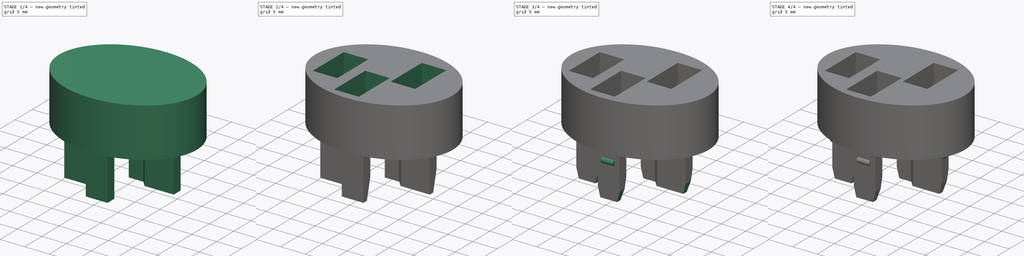
[diagram: build sequence overview — one tinted view per stage of 4, left to right]
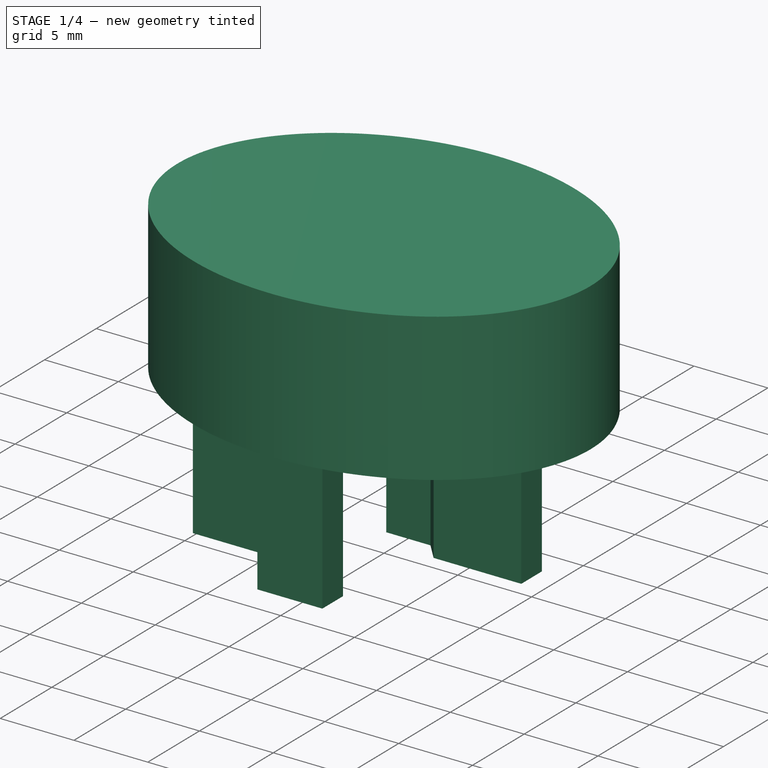
[diagram: stage 1 of 4 — iso view after this stage's code; geometry added in this stage tinted green]
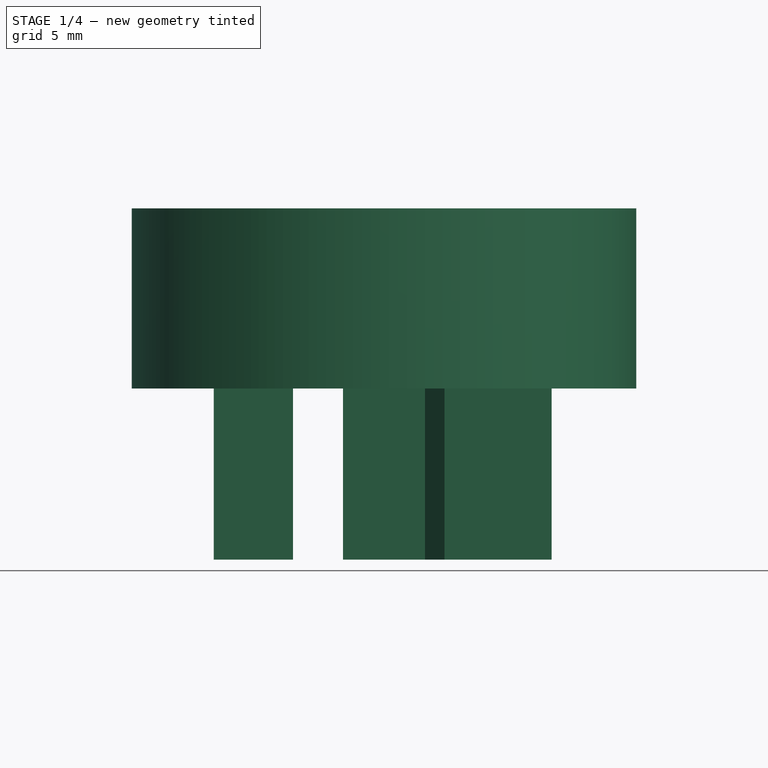
[diagram: stage 1 of 4 — front view after this stage's code; geometry added in this stage tinted green]
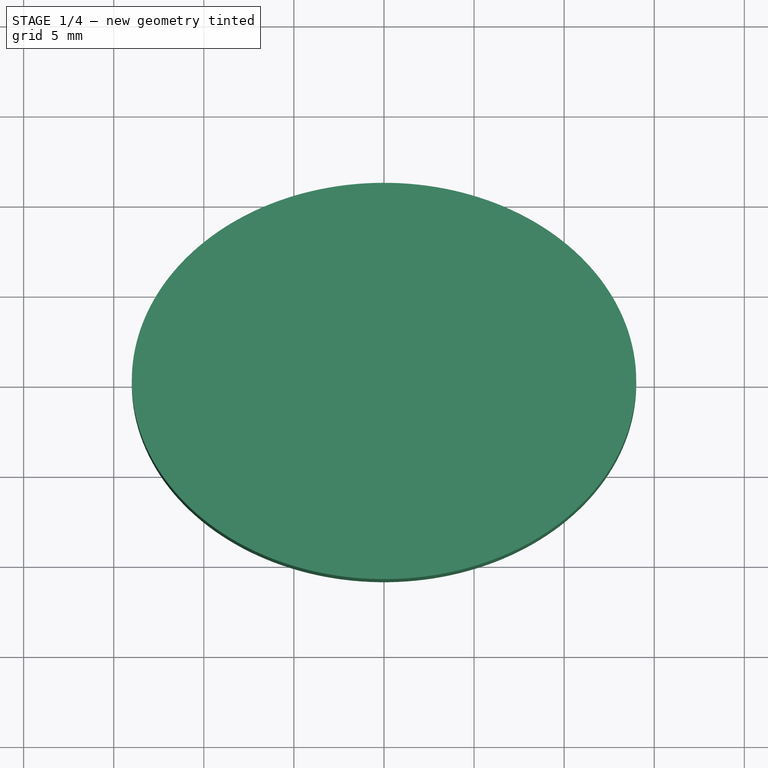
[diagram: stage 1 of 4 — top view after this stage's code; geometry added in this stage tinted green]
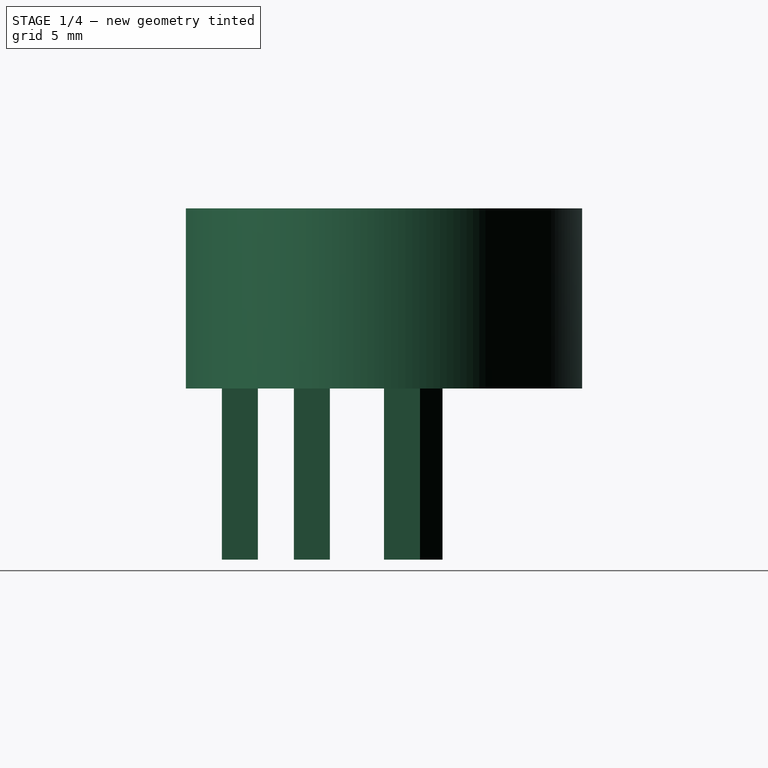
[diagram: stage 1 of 4 — right view after this stage's code; geometry added in this stage tinted green]
FCSTD DOCUMENT  (FreeCAD 0.19R24276 (Git))
Label: bosch_plug_V2
License: All rights reserved
LicenseURL: http://en.wikipedia.org/wiki/All_rights_reserved
objects: Sketcher::SketchObject×7, PartDesign::Pad×5, PartDesign::Chamfer×3, PartDesign::Pocket×2, PartDesign::Body×1
note: 28 computed .brp shape members not serialized (recipe doc carries the construction recipe); baked Part::Feature solids carry a one-line shape summary decoded from their .brp

FEATURE [Sketcher::SketchObject] Sketch
  FullyConstrained = true
  MapMode = 5
  Support = -> [XY_Plane]
  sketch-geometry (5):
    g0: Ellipse CenterX=0 CenterY=0 CenterZ=0 NormalX=0 NormalY=0 NormalZ=1 MajorRadius=14 MinorRadius=11 AngleXU=0
    g1: LineSegment StartX=14 StartY=0 StartZ=0 EndX=-14 EndY=0 EndZ=0
    g2: LineSegment StartX=0 StartY=11 StartZ=0 EndX=0 EndY=-11 EndZ=0
    g3: GeomPoint X=8.66025 Y=0 Z=0
    g4: GeomPoint X=-8.66025 Y=0 Z=0
  constraints (5):
    c: InternalAlignment(g1-g4 -> g0) x4
    c: Coincident(g0,g-1)
    c: Vertical(g2)
    c: DistanceY(g2,g2) = 22
    c: DistanceX(g1,g1) = 28
FEATURE [PartDesign::Pad] Pad
  AllowMultiFace = false
  Direction = (1,1,1)
  Length = 10
  Length2 = 100
  Profile = -> Sketch
  Type = 0
FEATURE [Sketcher::SketchObject] Sketch001
  FullyConstrained = true
  MapMode = 5
  Placement = pos=(0,0,0) rot=(1,0,0;3.14159rad)
  Support = -> [Pad]
  sketch-geometry (16):
    g0: LineSegment StartX=-9.45 StartY=5 StartZ=0 EndX=-5.05 EndY=5 EndZ=0
    g1: LineSegment StartX=-5.05 StartY=5 StartZ=0 EndX=-5.05 EndY=3 EndZ=0
    g2: LineSegment StartX=-5.05 StartY=3 StartZ=0 EndX=-9.45 EndY=3 EndZ=0
    g3: LineSegment StartX=-9.45 StartY=3 StartZ=0 EndX=-9.45 EndY=5 EndZ=0
    g4: LineSegment StartX=-2.275 StartY=9 StartZ=0 EndX=2.125 EndY=9 EndZ=0
    g5: LineSegment StartX=2.125 StartY=9 StartZ=0 EndX=2.125 EndY=7 EndZ=0
    g6: LineSegment StartX=2.125 StartY=7 StartZ=0 EndX=-2.275 EndY=7 EndZ=0
    g7: LineSegment StartX=-2.275 StartY=7 StartZ=0 EndX=-2.275 EndY=9 EndZ=0
    g8: LineSegment StartX=-0.725 StartY=-1.25 StartZ=0 EndX=2.275 EndY=-1.25 EndZ=0
    g9: LineSegment StartX=2.275 StartY=-1.25 StartZ=0 EndX=3.36161 EndY=0 EndZ=0
    g10: LineSegment StartX=3.36161 StartY=0 StartZ=0 EndX=9.30161 EndY=0 EndZ=0
    g11: LineSegment StartX=9.30161 StartY=0 StartZ=0 EndX=9.30161 EndY=-2 EndZ=0
    g12: LineSegment StartX=9.30161 StartY=-2 StartZ=0 EndX=3.36161 EndY=-2 EndZ=0
    g13: LineSegment StartX=3.36161 StartY=-2 StartZ=0 EndX=2.275 EndY=-3.25 EndZ=0
    g14: LineSegment StartX=2.275 StartY=-3.25 StartZ=0 EndX=-0.725 EndY=-3.25 EndZ=0
    g15: LineSegment StartX=-0.725 StartY=-3.25 StartZ=0 EndX=-0.725 EndY=-1.25 EndZ=0
  constraints (48):
    c: Coincident(g0,g1)
    c: Coincident(g1,g2)
    c: Coincident(g2,g3)
    c: Coincident(g3,g0)
    c: Horizontal(g0)
    c: Horizontal(g2)
    c: Vertical(g1)
    c: Vertical(g3)
    c: Coincident(g4,g5)
    c: Coincident(g5,g6)
    c: Coincident(g6,g7)
    c: Coincident(g7,g4)
    c: Horizontal(g4)
    c: Horizontal(g6)
    c: Vertical(g5)
    c: Vertical(g7)
    c: Horizontal(g8)
    c: Coincident(g8,g9)
    c: PointOnObject(g9,g-1)
    c: Coincident(g9,g10)
    c: Horizontal(g10)
    c: Coincident(g10,g11)
    c: Vertical(g11)
    c: Coincident(g11,g12)
    c: Horizontal(g12)
    c: Coincident(g12,g13)
    c: Coincident(g13,g14)
    c: Horizontal(g14)
    c: Coincident(g14,g15)
    c: Coincident(g15,g8)
    c: Vertical(g15)
    c: DistanceX(g0,g0) = 4.4
    c: DistanceY(g1,g1) = 2
    c: DistanceY(g5,g5) = 2
    c: DistanceX(g4,g4) = 4.4
    c: DistanceY(g15,g15) = 2
    c: Angle(g13,g14) = 2.28638
    c: Angle(g9,g8) = 2.28638
    c: DistanceX(g8,g8) = 3
    c: DistanceX(g14,g14) = 3
    c: DistanceY(g11,g11) = 2
    c: DistanceX(g10,g10) = 5.94
    c: DistanceX(g8,g-1) = 0.725
    c: DistanceY(g8,g-1) = 1.25
    c: DistanceX(g1,g-1) = 5.05
    c: DistanceY(g-1,g1) = 3
    c: DistanceY(g-1,g5) = 7
    c: DistanceX(g6,g-1) = 2.275
FEATURE [PartDesign::Pad] Pad001
  AllowMultiFace = false
  BaseFeature = -> Pad
  Direction = (1,1,1)
  Length = 9.5
  Length2 = 100
  Profile = -> Sketch001
  Type = 0
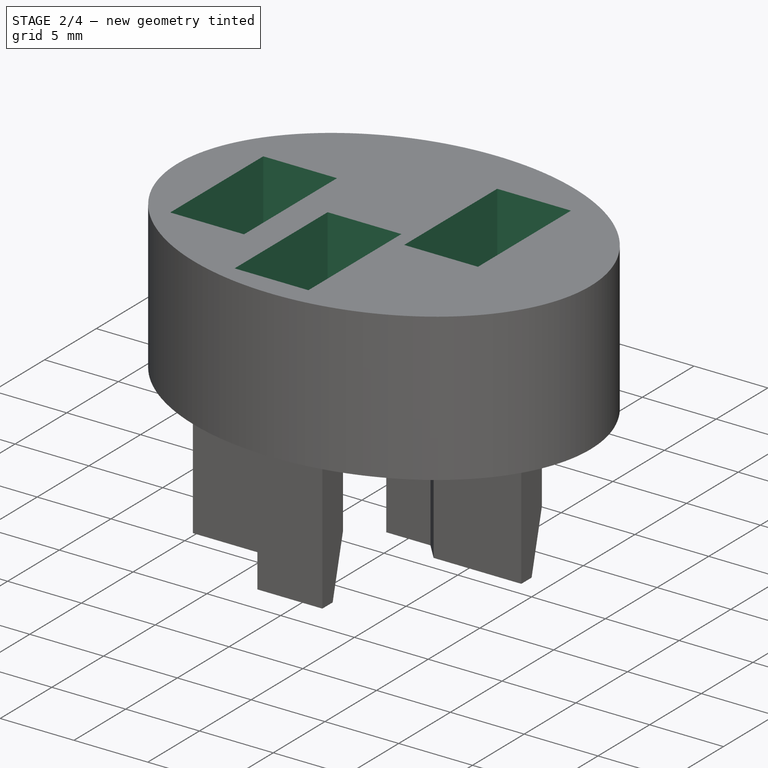
[diagram: stage 2 of 4 — iso view after this stage's code; geometry added in this stage tinted green]
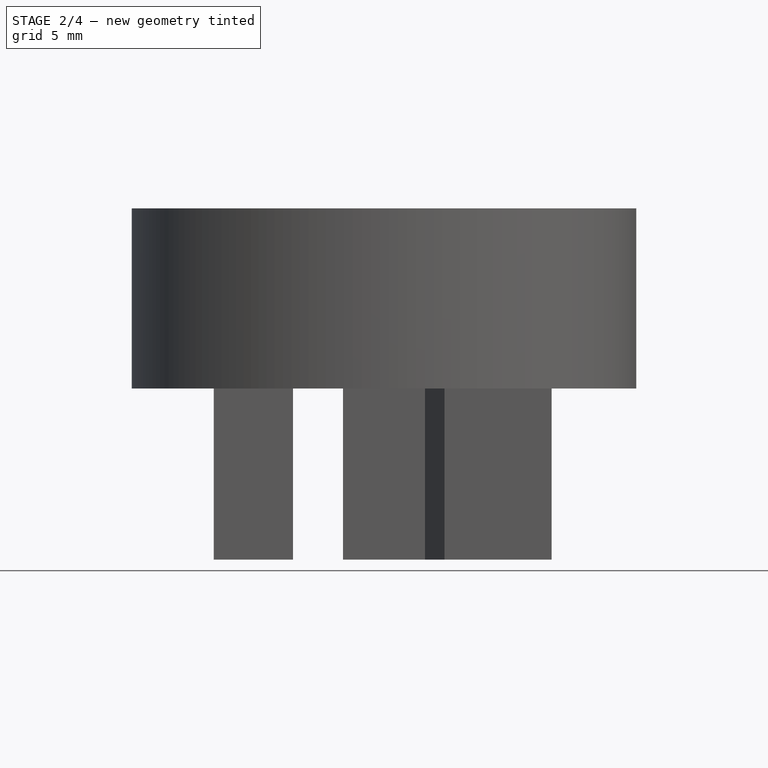
[diagram: stage 2 of 4 — front view after this stage's code; geometry added in this stage tinted green]
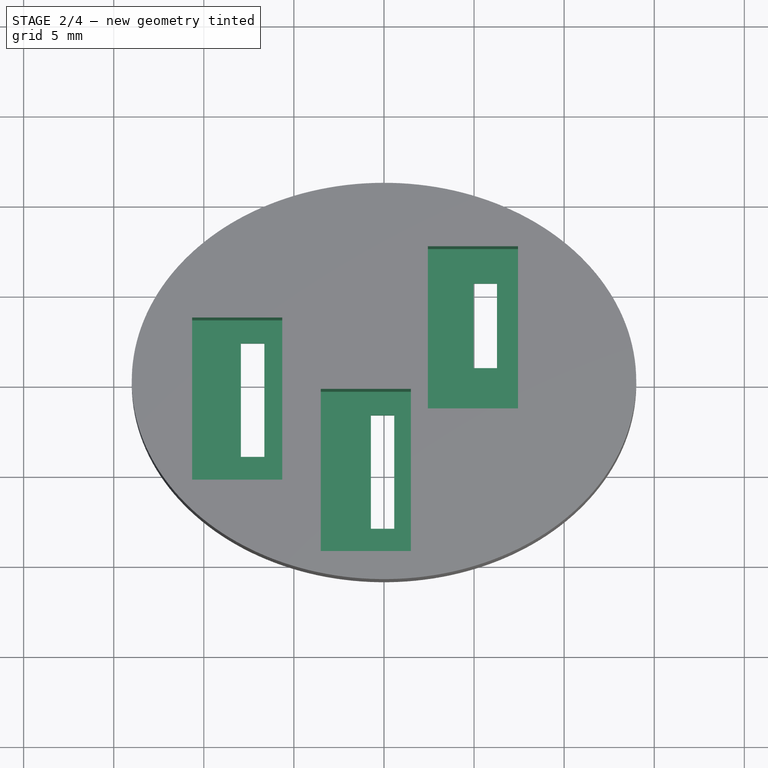
[diagram: stage 2 of 4 — top view after this stage's code; geometry added in this stage tinted green]
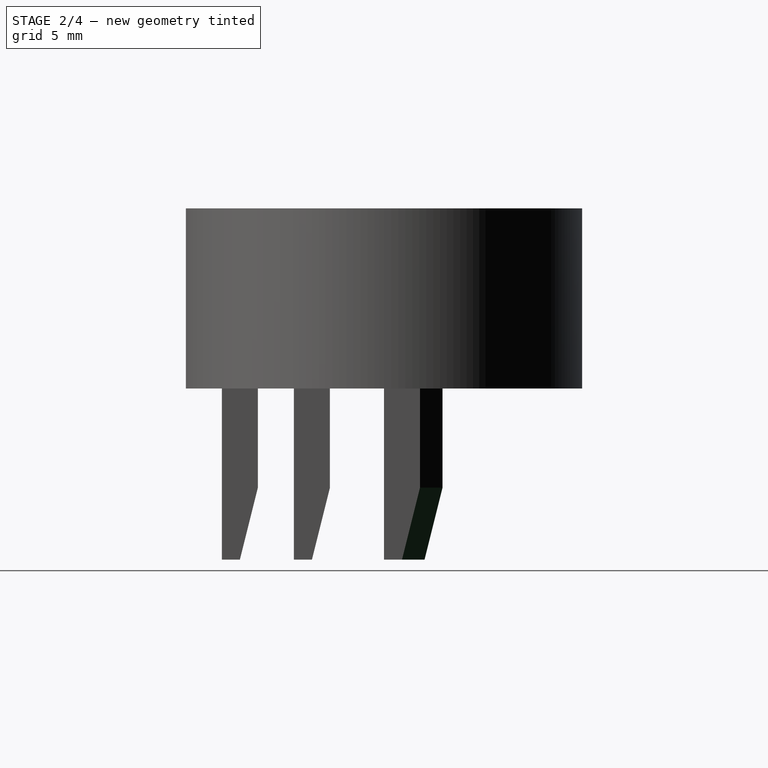
[diagram: stage 2 of 4 — right view after this stage's code; geometry added in this stage tinted green]
FEATURE [Sketcher::SketchObject] Sketch002
  AttachmentOffset = pos=(0,0,10) rot=(0,0,1;0rad)
  FullyConstrained = true
  MapMode = 5
  Placement = pos=(0,0,-10) rot=(1,0,0;3.14159rad)
  Support = -> [Pad001]
  sketch-geometry (12):
    g0: LineSegment StartX=-7.94 StartY=4.06 StartZ=0 EndX=-6.64 EndY=4.06 EndZ=0
    g1: LineSegment StartX=-6.64 StartY=4.06 StartZ=0 EndX=-6.64 EndY=-2.24 EndZ=0
    g2: LineSegment StartX=-6.64 StartY=-2.24 StartZ=0 EndX=-7.94 EndY=-2.24 EndZ=0
    g3: LineSegment StartX=-7.94 StartY=-2.24 StartZ=0 EndX=-7.94 EndY=4.06 EndZ=0
    g4: LineSegment StartX=-0.73 StartY=8.05 StartZ=0 EndX=0.57 EndY=8.05 EndZ=0
    g5: LineSegment StartX=0.57 StartY=8.05 StartZ=0 EndX=0.57 EndY=1.75 EndZ=0
    g6: LineSegment StartX=0.57 StartY=1.75 StartZ=0 EndX=-0.73 EndY=1.75 EndZ=0
    g7: LineSegment StartX=-0.73 StartY=1.75 StartZ=0 EndX=-0.73 EndY=8.05 EndZ=0
    g8: LineSegment StartX=4.97 StartY=-0.87 StartZ=0 EndX=6.27 EndY=-0.87 EndZ=0
    g9: LineSegment StartX=6.27 StartY=-0.87 StartZ=0 EndX=6.27 EndY=-5.56 EndZ=0
    g10: LineSegment StartX=6.27 StartY=-5.56 StartZ=0 EndX=4.97 EndY=-5.56 EndZ=0
    g11: LineSegment StartX=4.97 StartY=-5.56 StartZ=0 EndX=4.97 EndY=-0.87 EndZ=0
  constraints (36):
    c: Coincident(g0,g1)
    c: Coincident(g1,g2)
    c: Coincident(g2,g3)
    c: Coincident(g3,g0)
    c: Horizontal(g0)
    c: Horizontal(g2)
    c: Vertical(g1)
    c: Vertical(g3)
    c: Coincident(g4,g5)
    c: Coincident(g5,g6)
    c: Coincident(g6,g7)
    c: Coincident(g7,g4)
    c: Horizontal(g4)
    c: Horizontal(g6)
    c: Vertical(g5)
    c: Vertical(g7)
    c: Coincident(g8,g9)
    c: Coincident(g9,g10)
    c: Coincident(g10,g11)
    c: Coincident(g11,g8)
    c: Horizontal(g8)
    c: Horizontal(g10)
    c: Vertical(g9)
    c: Vertical(g11)
    c: DistanceY(g1,g1) = 6.3
    c: DistanceX(g2,g2) = 1.3
    c: DistanceY(g1,g-1) = 2.24
    c: DistanceX(g1,g-1) = 6.64
    c: DistanceX(g6,g6) = 1.3
    c: DistanceY(g7,g7) = 6.3
    c: DistanceY(g-1,g6) = 1.75
    c: DistanceX(g6,g-1) = 0.73
    c: DistanceX(g10,g10) = 1.3
    c: DistanceY(g9,g9) = 4.69
    c: DistanceY(g8,g-1) = 0.87
    c: DistanceX(g-1,g8) = 4.97
FEATURE [PartDesign::Pocket] Pocket
  AllowMultiFace = false
  BaseFeature = -> Pad001
  Length = 20
  Length2 = 100
  Profile = -> Sketch002
  Type = 0
FEATURE [Sketcher::SketchObject] Sketch003
  FullyConstrained = false
  MapMode = 5
  Placement = pos=(0,0,10) rot=(0,0,1;0rad)
  Support = -> [Pocket]
  sketch-geometry (12):
    g0: LineSegment StartX=-10.6481 StartY=3.52212 StartZ=0 EndX=-5.64805 EndY=3.52212 EndZ=0
    g1: LineSegment StartX=-5.64805 StartY=3.52212 StartZ=0 EndX=-5.64805 EndY=-5.47788 EndZ=0
    g2: LineSegment StartX=-5.64805 StartY=-5.47788 StartZ=0 EndX=-10.6481 EndY=-5.47788 EndZ=0
    g3: LineSegment StartX=-10.6481 StartY=-5.47788 StartZ=0 EndX=-10.6481 EndY=3.52212 EndZ=0
    g4: LineSegment StartX=-3.51091 StartY=-0.440755 StartZ=0 EndX=1.48909 EndY=-0.440755 EndZ=0
    g5: LineSegment StartX=1.48909 StartY=-0.440755 StartZ=0 EndX=1.48909 EndY=-9.44076 EndZ=0
    g6: LineSegment StartX=1.48909 StartY=-9.44076 StartZ=0 EndX=-3.51091 EndY=-9.44076 EndZ=0
    g7: LineSegment StartX=-3.51091 StartY=-9.44076 StartZ=0 EndX=-3.51091 EndY=-0.440755 EndZ=0
    g8: LineSegment StartX=2.43566 StartY=7.47765 StartZ=0 EndX=7.43566 EndY=7.47765 EndZ=0
    g9: LineSegment StartX=7.43566 StartY=7.47765 StartZ=0 EndX=7.43566 EndY=-1.52235 EndZ=0
    g10: LineSegment StartX=7.43566 StartY=-1.52235 StartZ=0 EndX=2.43566 EndY=-1.52235 EndZ=0
    g11: LineSegment StartX=2.43566 StartY=-1.52235 StartZ=0 EndX=2.43566 EndY=7.47765 EndZ=0
  constraints (30):
    c: Coincident(g0,g1)
    c: Coincident(g1,g2)
    c: Coincident(g2,g3)
    c: Coincident(g3,g0)
    c: Horizontal(g0)
    c: Horizontal(g2)
    c: Vertical(g1)
    c: Vertical(g3)
    c: Coincident(g4,g5)
    c: Coincident(g5,g6)
    c: Coincident(g6,g7)
    c: Coincident(g7,g4)
    c: Horizontal(g4)
    c: Horizontal(g6)
    c: Vertical(g5)
    c: Vertical(g7)
    c: Coincident(g8,g9)
    c: Coincident(g9,g10)
    c: Coincident(g10,g11)
    c: Coincident(g11,g8)
    c: Horizontal(g8)
    c: Horizontal(g10)
    c: Vertical(g9)
    c: Vertical(g11)
    c: DistanceX(g0,g0) = 5
    c: DistanceY(g3,g3) = 9
    c: Equal(g0,g8)
    c: Equal(g8,g4)
    c: Equal(g3,g7)
    c: Equal(g7,g11)
FEATURE [PartDesign::Pocket] Pocket001
  AllowMultiFace = false
  BaseFeature = -> Pocket
  Length = 9
  Length2 = 100
  Profile = -> Sketch003
  Type = 0
FEATURE [PartDesign::Chamfer] Chamfer
  Angle = 45
  Base = -> Pocket001 [Edge82,Edge70,Edge62,Edge50,Edge110,Edge108,Edge106,Edge94]
  BaseFeature = -> Pocket001
  ChamferType = 1
  FlipDirection = false
  Size = 4
  Size2 = 1
  SupportTransform = false
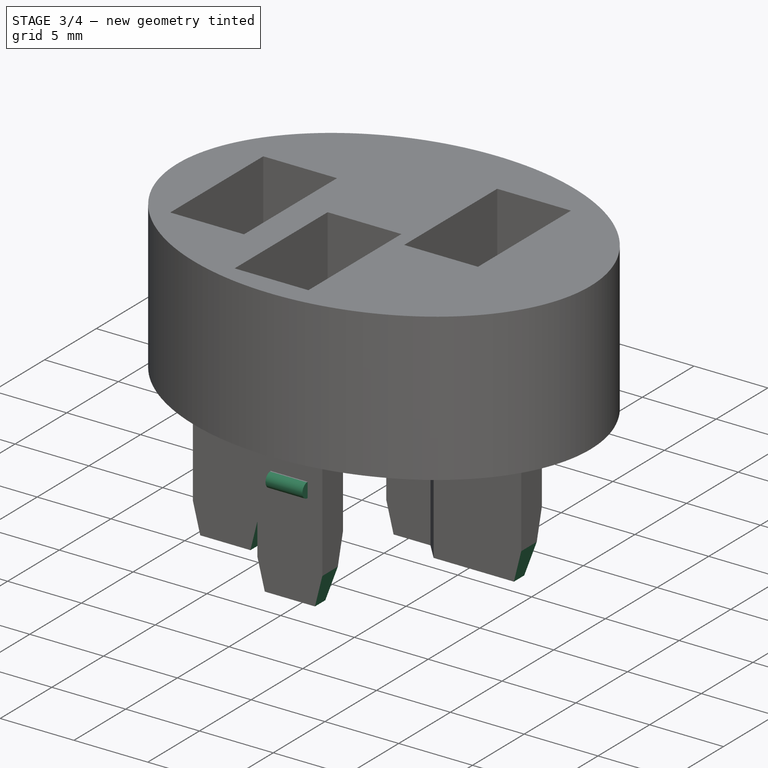
[diagram: stage 3 of 4 — iso view after this stage's code; geometry added in this stage tinted green]
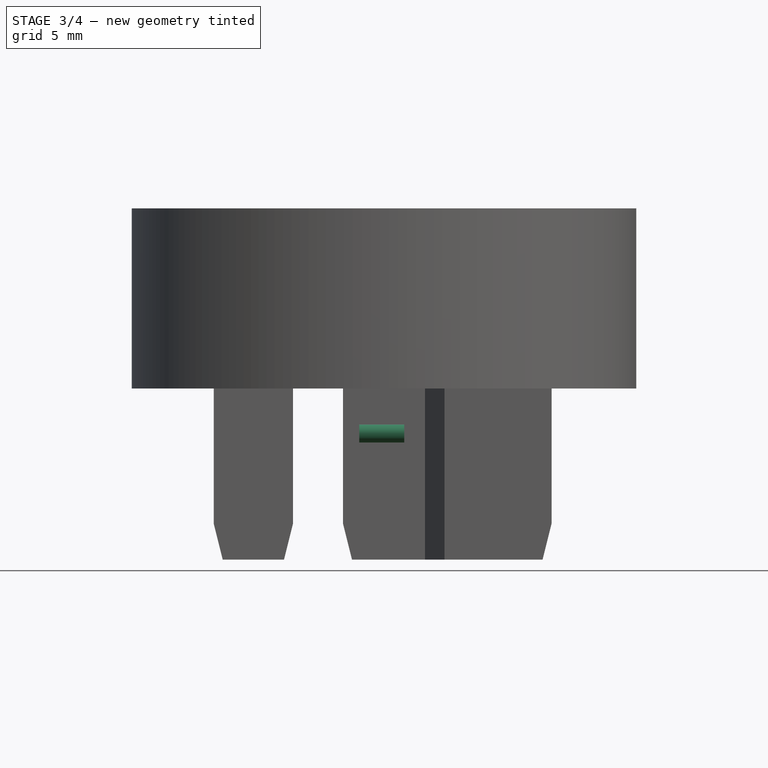
[diagram: stage 3 of 4 — front view after this stage's code; geometry added in this stage tinted green]
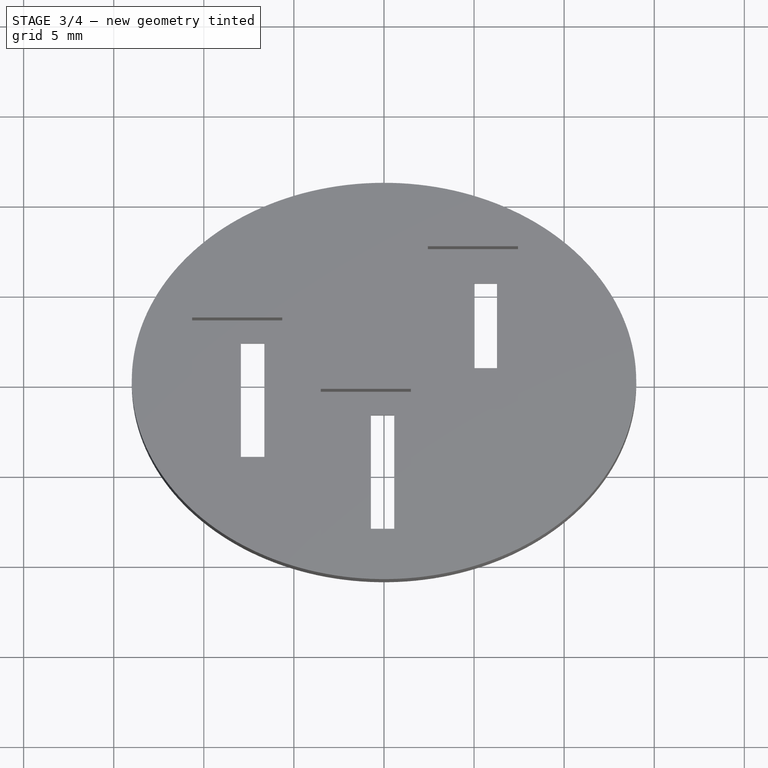
[diagram: stage 3 of 4 — top view after this stage's code; geometry added in this stage tinted green]
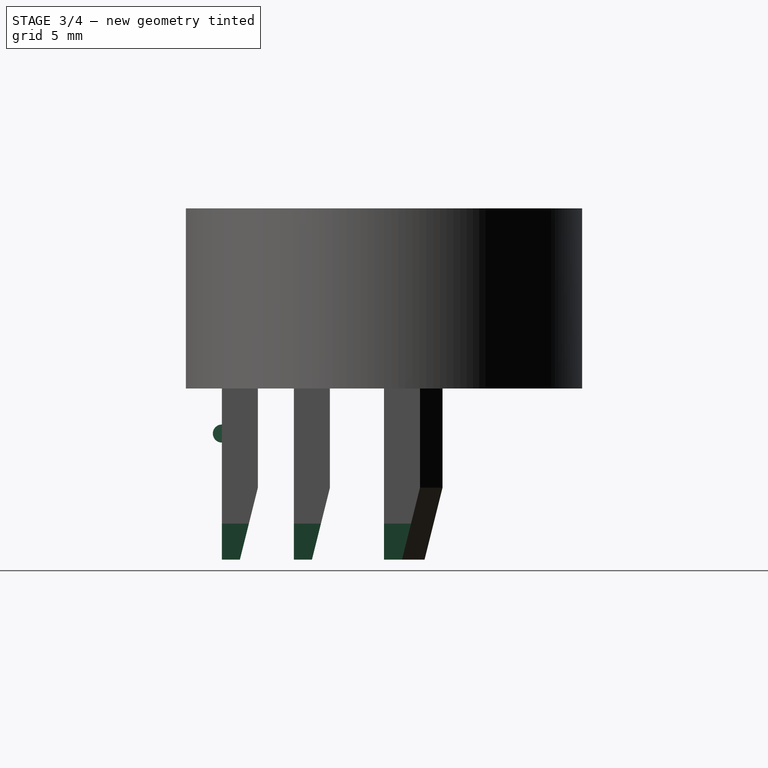
[diagram: stage 3 of 4 — right view after this stage's code; geometry added in this stage tinted green]
FEATURE [PartDesign::Chamfer] Chamfer001
  Angle = 45
  Base = -> Chamfer [Edge82,Edge64,Edge4,Edge114,Edge92]
  BaseFeature = -> Chamfer
  ChamferType = 1
  FlipDirection = false
  Size = 2
  Size2 = 0.5
  SupportTransform = false
FEATURE [PartDesign::Chamfer] Chamfer002
  Angle = 45
  Base = -> Chamfer001 [Edge43]
  BaseFeature = -> Chamfer001
  ChamferType = 1
  FlipDirection = false
  Size = 0.5
  Size2 = 2
  SupportTransform = false
FEATURE [Sketcher::SketchObject] Sketch004
  AttachmentOffset = pos=(0,0,-3.5) rot=(0,0,1;0rad)
  ExternalGeometry = -> [Chamfer002]
  FullyConstrained = true
  MapMode = 5
  Placement = pos=(-1.375,0,0) rot=(0.57735,0.57735,0.57735;2.0944rad)
  Support = -> [Chamfer002]
  sketch-geometry (1):
    g0: Circle CenterX=-9 CenterY=-2.5 CenterZ=0 NormalX=0 NormalY=0 NormalZ=1 AngleXU=0 Radius=0.5
  constraints (3):
    c: PointOnObject(g0,g-3)
    c: Radius(g0) = 0.5
    c: DistanceY(g0,g-1) = 2.5
FEATURE [PartDesign::Pad] Pad002
  BaseFeature = -> Chamfer002
  Direction = (1,1,1)
  Length = 2.5
  Length2 = 100
  Profile = -> Sketch004
  Type = 0
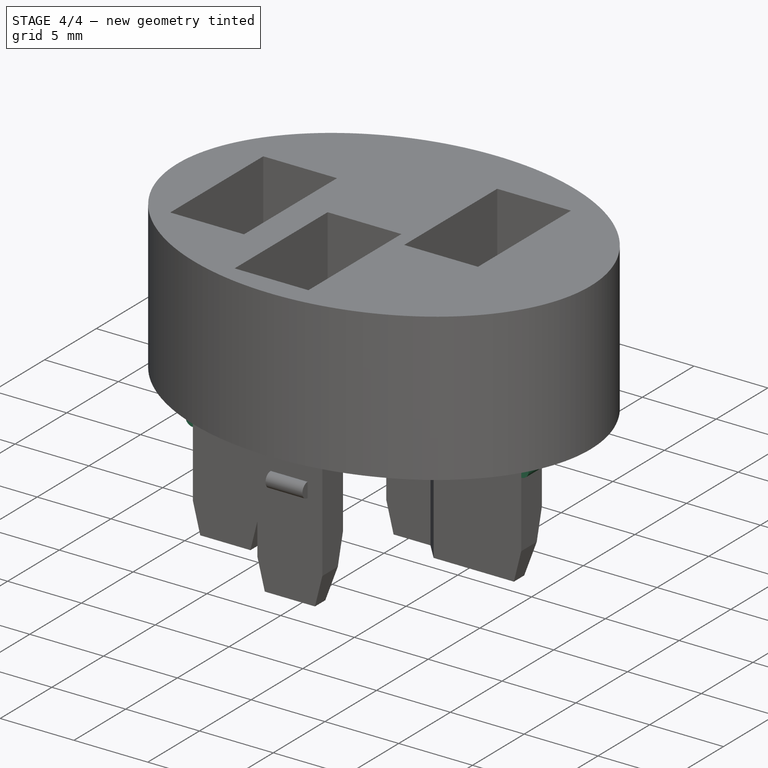
[diagram: stage 4 of 4 — iso view after this stage's code; geometry added in this stage tinted green]
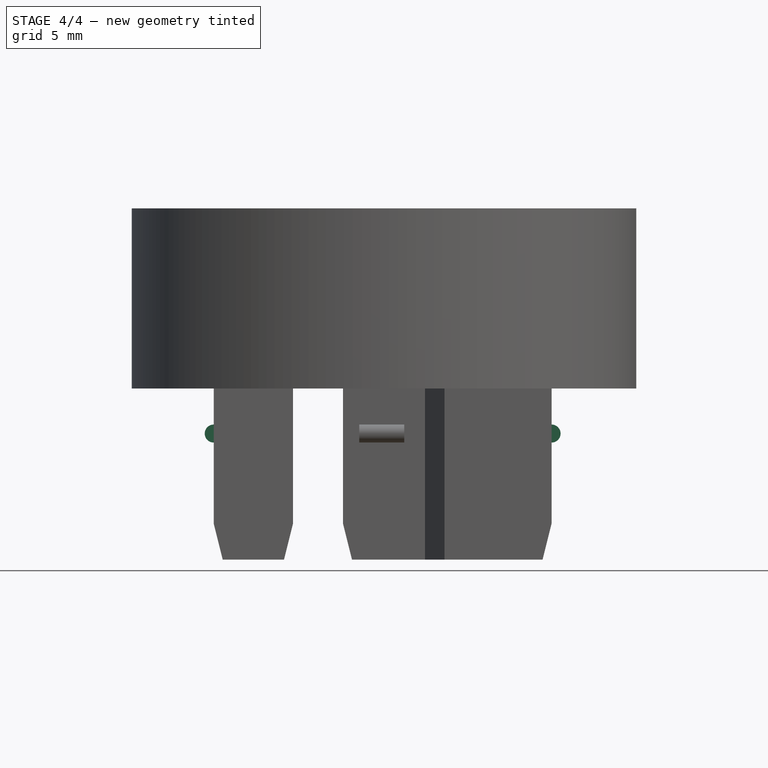
[diagram: stage 4 of 4 — front view after this stage's code; geometry added in this stage tinted green]
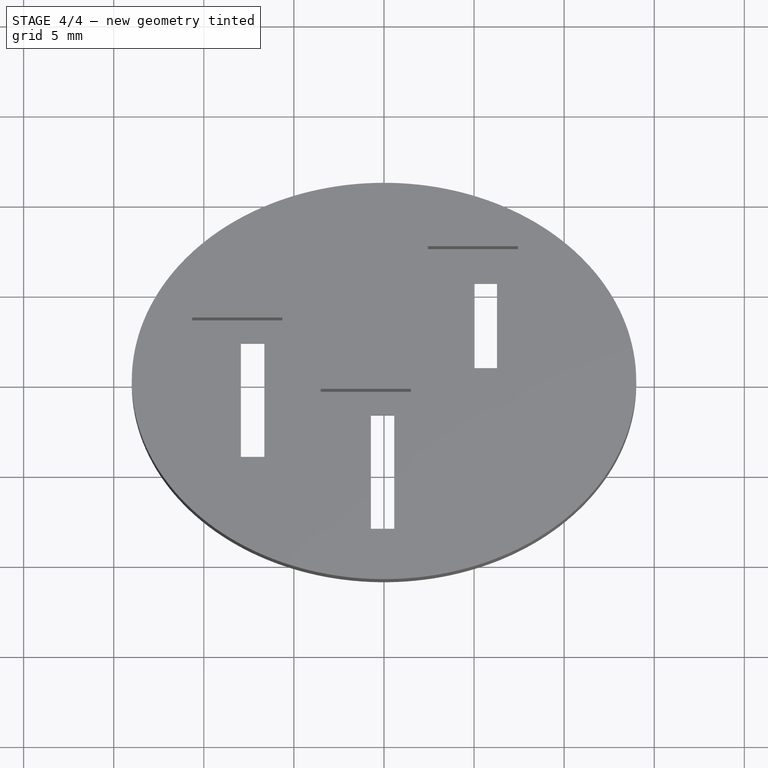
[diagram: stage 4 of 4 — top view after this stage's code; geometry added in this stage tinted green]
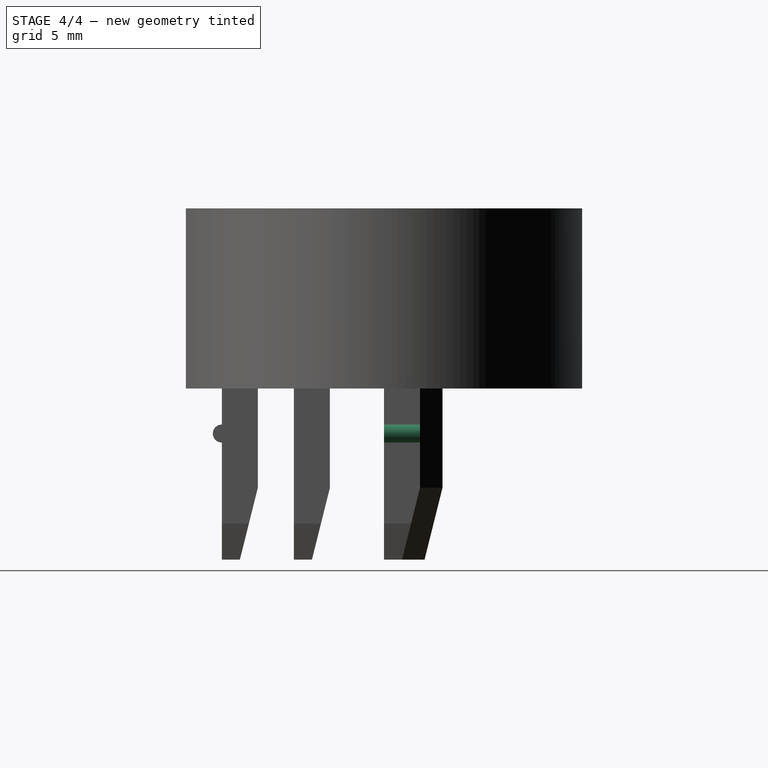
[diagram: stage 4 of 4 — right view after this stage's code; geometry added in this stage tinted green]
FEATURE [Sketcher::SketchObject] Sketch005
  AttachmentOffset = pos=(0,0,-2) rot=(0,0,1;0rad)
  ExternalGeometry = -> [Pad002]
  FullyConstrained = true
  MapMode = 5
  Placement = pos=(0,-3,-4e-16) rot=(1,0,0;1.5708rad)
  Support = -> [Pad002]
  sketch-geometry (1):
    g0: Circle CenterX=-9.45 CenterY=-2.5 CenterZ=0 NormalX=0 NormalY=0 NormalZ=1 AngleXU=0 Radius=0.5
  constraints (3):
    c: PointOnObject(g0,g-3)
    c: Radius(g0) = 0.5
    c: DistanceY(g0,g-1) = 2.5
FEATURE [PartDesign::Pad] Pad003
  BaseFeature = -> Pad002
  Direction = (1,1,1)
  Length = 2
  Length2 = 100
  Profile = -> Sketch005
  Type = 0
FEATURE [Sketcher::SketchObject] Sketch006
  AttachmentOffset = pos=(0,0,-2) rot=(0,0,1;0rad)
  ExternalGeometry = -> [Pad003]
  FullyConstrained = true
  MapMode = 5
  Placement = pos=(0,2,-4e-16) rot=(1,0,0;1.5708rad)
  Support = -> [Pad003]
  sketch-geometry (1):
    g0: Circle CenterX=9.30161 CenterY=-2.5 CenterZ=0 NormalX=0 NormalY=0 NormalZ=1 AngleXU=0 Radius=0.5
  constraints (3):
    c: DistanceY(g0,g-1) = 2.5
    c: PointOnObject(g0,g-3)
    c: Radius(g0) = 0.5
FEATURE [PartDesign::Pad] Pad004
  BaseFeature = -> Pad003
  Direction = (1,1,1)
  Length = 2
  Length2 = 100
  Profile = -> Sketch006
  Type = 0
FEATURE [PartDesign::Body] Body
  Group = -> [Sketch,Pad,Sketch001,Pad001,Sketch002,Pocket,Sketch003,Pocket001,Chamfer,Chamfer001,Chamfer002,Sketch004,Pad002,Sketch005,Pad003,Sketch006,Pad004]
  Origin = -> Origin
  Tip = -> Pad004
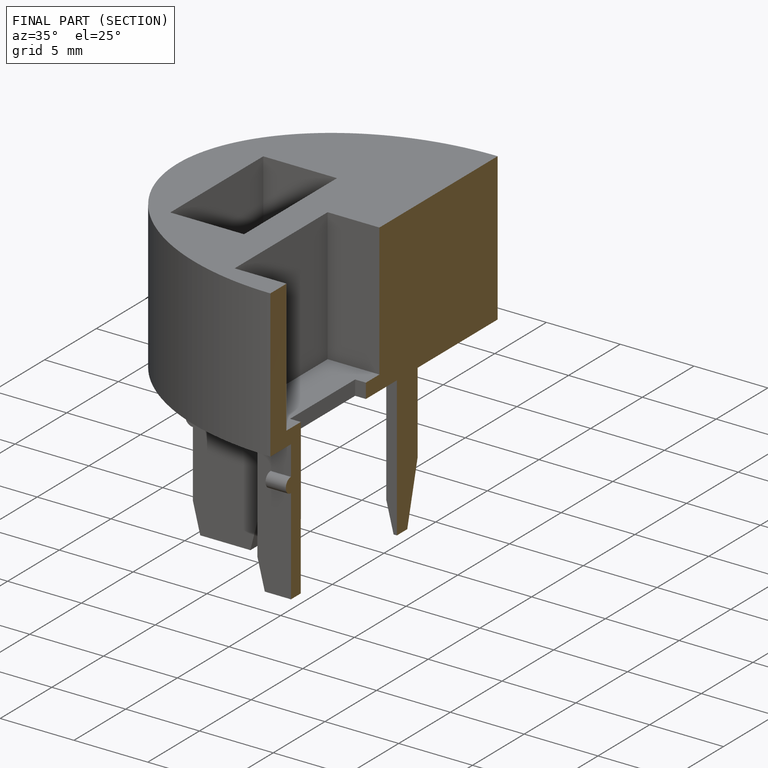
[diagram: finished part — half-section view (interior)]
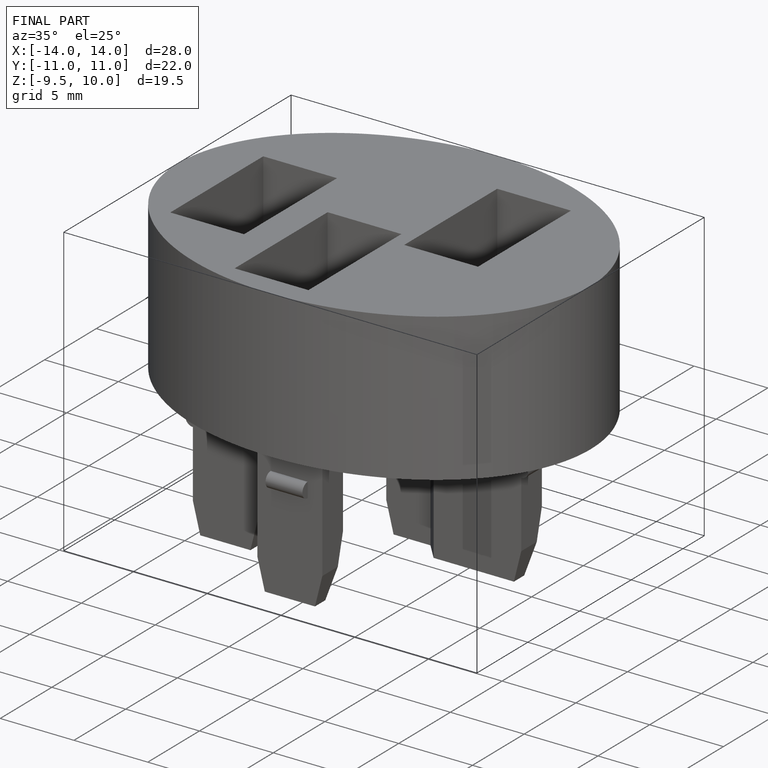
[diagram: finished part — iso view with bounding-box wireframe]
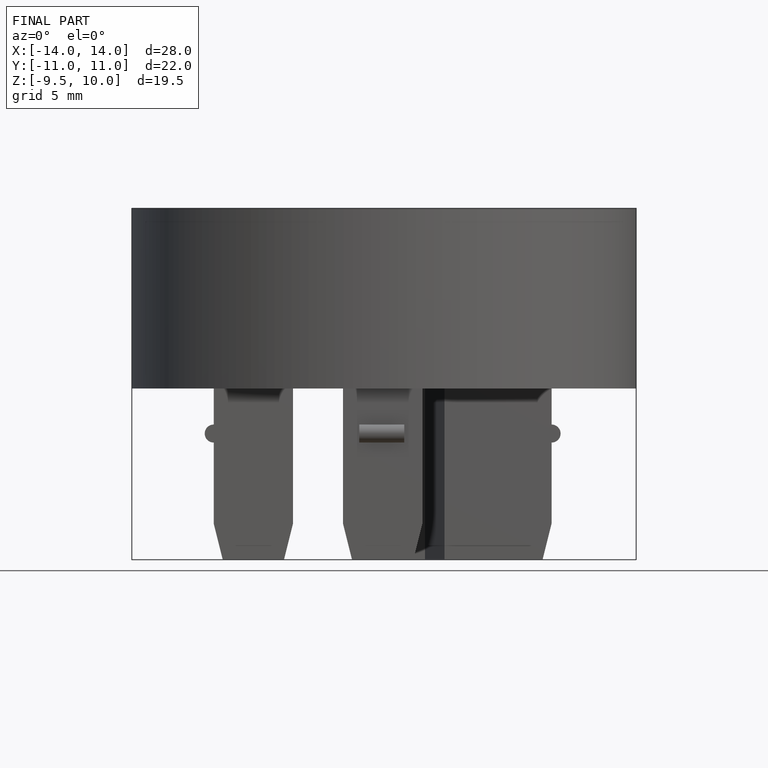
[diagram: finished part — front view with bounding-box wireframe]
